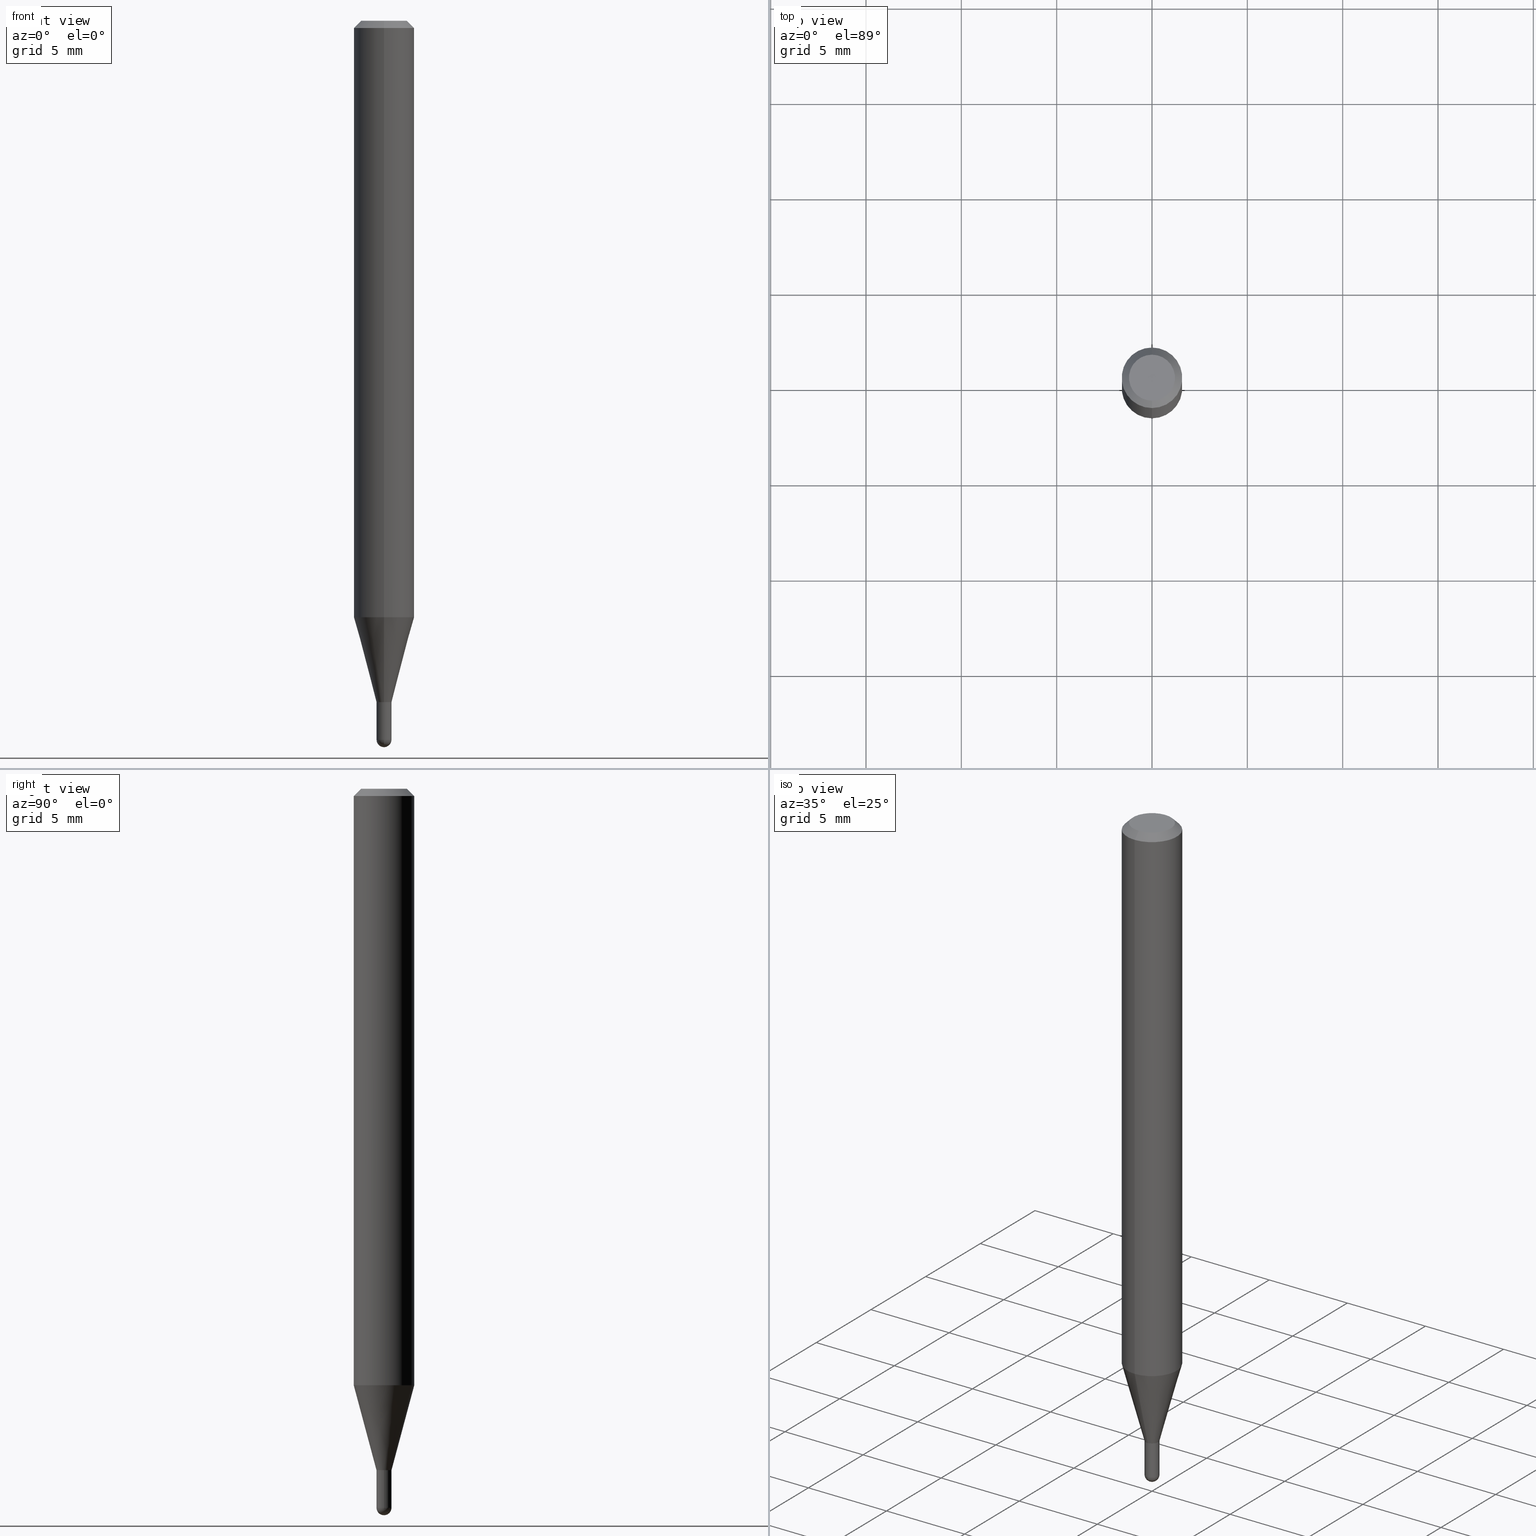
[diagram: canonical four-view strip — front | top / right | iso, engineering-drawing reading convention]
A machine part, canonical four-view strip (front | top / right | iso — engineering-drawing reading convention). The complete STEP part file that produces these views, byte-faithful:
ISO-10303-21;
HEADER;
FILE_DESCRIPTION (( 'STEP AP203' ),
    '1' );
FILE_NAME ('01454.STEP',
    '2024-03-07T21:06:24',
    ( '' ),
    ( '' ),
    'SwSTEP 2.0',
    'SolidWorks 2023',
    '' );
FILE_SCHEMA (( 'CONFIG_CONTROL_DESIGN' ));
ENDSEC;

DATA;
#1 = CARTESIAN_POINT ( 'NONE',  ( 3.011812684095475893E-29, -4.300101975033104784E-15, -1.231593612044268315 ) ) ;
#2 = CYLINDRICAL_SURFACE ( 'NONE', #209, 0.01549999999999999989 ) ;
#3 = DESIGN_CONTEXT ( 'detailed design', #353, 'design' ) ;
#4 = CARTESIAN_POINT ( 'NONE',  ( 3.440761956769566875E-29, -4.912532364331644444E-15, -1.407000000000000250 ) ) ;
#5 = DIRECTION ( 'NONE',  ( 6.982962677686265922E-15, 1.000000000000000000, -3.491494217719718560E-15 ) ) ;
#6 = AXIS2_PLACEMENT_3D ( 'NONE', #387, #466, #76 ) ;
#7 = CIRCLE ( 'NONE', #379, 0.01549999999999992530 ) ;
#8 = LINE ( 'NONE', #475, #362 ) ;
#9 = FACE_OUTER_BOUND ( 'NONE', #68, .T. ) ;
#10 = DIRECTION ( 'NONE',  ( -2.445459812913692826E-29, 3.491494217719718166E-15, 1.000000000000000000 ) ) ;
#11 = VERTEX_POINT ( 'NONE', #306 ) ;
#12 = FACE_OUTER_BOUND ( 'NONE', #56, .T. ) ;
#13 = EDGE_LOOP ( 'NONE', ( #136, #458, #26, #213 ) ) ;
#14 = APPROVAL_DATE_TIME ( #57, #111 ) ;
#15 = APPROVAL_PERSON_ORGANIZATION ( #168, #111, #450 ) ;
#16 = ORIENTED_EDGE ( 'NONE', *, *, #139, .F. ) ;
#17 = PERSON_AND_ORGANIZATION ( #408, #117 ) ;
#18 = EDGE_CURVE ( 'NONE', #382, #19, #219, .T. ) ;
#19 = VERTEX_POINT ( 'NONE', #232 ) ;
#20 = COORDINATED_UNIVERSAL_TIME_OFFSET ( 5, 0, .BEHIND. ) ;
#21 = ADVANCED_BREP_SHAPE_REPRESENTATION ( '01454', ( #170, #490, #372 ), #210 ) ;
#22 = ORIENTED_EDGE ( 'NONE', *, *, #108, .F. ) ;
#23 = PERSON_AND_ORGANIZATION_ROLE ( 'creator' ) ;
#24 = PRODUCT_DEFINITION_SHAPE ( 'NONE', 'NONE',  #189 ) ;
#25 = CIRCLE ( 'NONE', #430, 0.01549999999999992530 ) ;
#26 = ORIENTED_EDGE ( 'NONE', *, *, #404, .T. ) ;
#27 = CIRCLE ( 'NONE', #333, 0.01499999999999999944 ) ;
#28 = ORIENTED_EDGE ( 'NONE', *, *, #316, .T. ) ;
#29 = DIRECTION ( 'NONE',  ( -6.982962677686265922E-15, -1.000000000000000000, 0.000000000000000000 ) ) ;
#30 = ORIENTED_EDGE ( 'NONE', *, *, #326, .T. ) ;
#31 = CARTESIAN_POINT ( 'NONE',  ( 3.440761956769566315E-29, -4.912532364331642866E-15, -1.407000000000000028 ) ) ;
#32 = EDGE_LOOP ( 'NONE', ( #342, #295, #16, #310 ) ) ;
#33 = DIRECTION ( 'NONE',  ( -2.445459812913692826E-29, 3.491494217719718166E-15, 1.000000000000000000 ) ) ;
#34 = CONICAL_SURFACE ( 'NONE', #322, 0.01499999999999999944, 0.7853981633974739252 ) ;
#35 = AXIS2_PLACEMENT_3D ( 'NONE', #505, #343, #351 ) ;
#36 = LOCAL_TIME ( 16, 6, 24.00000000000000000, #371 ) ;
#37 = DIRECTION ( 'NONE',  ( -6.982962677686265922E-15, -1.000000000000000000, 3.491494217719717771E-15 ) ) ;
#38 = CARTESIAN_POINT ( 'NONE',  ( 1.101341240428149734E-16, 0.01549999999999992530, -5.411816037465536463E-17 ) ) ;
#39 = CARTESIAN_POINT ( 'NONE',  ( -0.01549999999999999989, -4.937675021589663102E-15, -1.407000000000000028 ) ) ;
#40 = DIRECTION ( 'NONE',  ( 2.445459812913692826E-29, -3.491494217719718166E-15, -1.000000000000000000 ) ) ;
#41 = LINE ( 'NONE', #246, #509 ) ;
#42 = CIRCLE ( 'NONE', #174, 0.01549999999999999989 ) ;
#43 = LOCAL_TIME ( 16, 6, 24.00000000000000000, #90 ) ;
#44 = CARTESIAN_POINT ( 'NONE',  ( -4.287811248607203282E-16, -0.06250000000000005551, -0.01499999999999979128 ) ) ;
#45 = DIRECTION ( 'NONE',  ( -6.982962677686265922E-15, -1.000000000000000000, 3.491494217719718560E-15 ) ) ;
#46 = CARTESIAN_POINT ( 'NONE',  ( 3.440761956769566315E-29, -4.912532364331642866E-15, -1.407000000000000028 ) ) ;
#47 = LENGTH_MEASURE_WITH_UNIT ( LENGTH_MEASURE( 0.02539999999999999897 ), #436 );
#48 = ADVANCED_FACE ( 'NONE', ( #186 ), #234, .T. ) ;
#49 = VECTOR ( 'NONE', #432, 39.37007874015748143 ) ;
#50 = SECURITY_CLASSIFICATION ( '', '', #217 ) ;
#51 = ORIENTED_EDGE ( 'NONE', *, *, #445, .T. ) ;
#52 = DIRECTION ( 'NONE',  ( 0.000000000000000000, 0.000000000000000000, 1.000000000000000000 ) ) ;
#53 = FACE_OUTER_BOUND ( 'NONE', #142, .T. ) ;
#54 = ORIENTED_EDGE ( 'NONE', *, *, #238, .T. ) ;
#55 = FACE_OUTER_BOUND ( 'NONE', #439, .T. ) ;
#56 = EDGE_LOOP ( 'NONE', ( #30, #109, #464, #370, #221 ) ) ;
#57 = DATE_AND_TIME ( #135, #43 ) ;
#58 = CIRCLE ( 'NONE', #412, 0.01549999999999999989 ) ;
#59 = AXIS2_PLACEMENT_3D ( 'NONE', #263, #268, #313 ) ;
#60 = VERTEX_POINT ( 'NONE', #348 ) ;
#61 = DATE_AND_TIME ( #291, #484 ) ;
#62 = VERTEX_POINT ( 'NONE', #235 ) ;
#63 = ADVANCED_FACE ( 'NONE', ( #456 ), #184, .F. ) ;
#64 = ORIENTED_EDGE ( 'NONE', *, *, #292, .T. ) ;
#65 = PERSON_AND_ORGANIZATION ( #408, #117 ) ;
#66 = EDGE_CURVE ( 'NONE', #426, #97, #58, .T. ) ;
#67 = AXIS2_PLACEMENT_3D ( 'NONE', #1, #130, #169 ) ;
#68 = EDGE_LOOP ( 'NONE', ( #500, #380 ) ) ;
#69 = AXIS2_PLACEMENT_3D ( 'NONE', #201, #162, #512 ) ;
#70 = LINE ( 'NONE', #459, #340 ) ;
#71 = DIMENSIONAL_EXPONENTS ( 1.000000000000000000, 0.000000000000000000, 0.000000000000000000, 0.000000000000000000, 0.000000000000000000, 0.000000000000000000, 0.000000000000000000 ) ;
#72 = EDGE_LOOP ( 'NONE', ( #334, #496 ) ) ;
#73 = FACE_OUTER_BOUND ( 'NONE', #167, .T. ) ;
#74 = VERTEX_POINT ( 'NONE', #105 ) ;
#75 = CARTESIAN_POINT ( 'NONE',  ( 0.000000000000000000, 0.000000000000000000, 0.000000000000000000 ) ) ;
#76 = DIRECTION ( 'NONE',  ( -6.982962677686265922E-15, -1.000000000000000000, 0.000000000000000000 ) ) ;
#77 = DIRECTION ( 'NONE',  ( -4.937700262164674260E-15, -0.7071067811865632269, 0.7071067811865319186 ) ) ;
#78 = AXIS2_PLACEMENT_3D ( 'NONE', #271, #384, #191 ) ;
#79 = AXIS2_PLACEMENT_3D ( 'NONE', #239, #507, #302 ) ;
#80 = DIRECTION ( 'NONE',  ( 1.839019923739648830E-15, 0.2588190451025317862, 0.9659258262890653146 ) ) ;
#81 = ADVANCED_FACE ( 'NONE', ( #194 ), #34, .T. ) ;
#82 = DIRECTION ( 'NONE',  ( -2.445459812913692826E-29, 3.491494217719718166E-15, 1.000000000000000000 ) ) ;
#83 = CONICAL_SURFACE ( 'NONE', #96, 0.01549999999999992530, 0.2617993877991573459 ) ;
#84 = APPLICATION_PROTOCOL_DEFINITION ( 'international standard', 'config_control_design', 1994, #224 ) ;
#85 = FACE_OUTER_BOUND ( 'NONE', #285, .T. ) ;
#86 = ORIENTED_EDGE ( 'NONE', *, *, #511, .F. ) ;
#87 = CARTESIAN_POINT ( 'NONE',  ( 3.440761956769566315E-29, -4.912532364331642866E-15, -1.407000000000000028 ) ) ;
#88 = CC_DESIGN_PERSON_AND_ORGANIZATION_ASSIGNMENT ( #417, #23, ( #266 ) ) ;
#89 = VERTEX_POINT ( 'NONE', #390 ) ;
#90 = COORDINATED_UNIVERSAL_TIME_OFFSET ( 5, 0, .BEHIND. ) ;
#91 = ADVANCED_FACE ( 'NONE', ( #53 ), #132, .F. ) ;
#92 = ORIENTED_EDGE ( 'NONE', *, *, #364, .F. ) ;
#93 = APPROVAL_ROLE ( '' ) ;
#94 = CALENDAR_DATE ( 2024, 7, 3 ) ;
#95 = AXIS2_PLACEMENT_3D ( 'NONE', #127, #405, #5 ) ;
#96 = AXIS2_PLACEMENT_3D ( 'NONE', #4, #82, #276 ) ;
#97 = VERTEX_POINT ( 'NONE', #39 ) ;
#98 = COORDINATED_UNIVERSAL_TIME_OFFSET ( 5, 0, .BEHIND. ) ;
#99 = DIRECTION ( 'NONE',  ( -2.445459812913692826E-29, 3.491494217719718166E-15, 1.000000000000000000 ) ) ;
#100 = COORDINATED_UNIVERSAL_TIME_OFFSET ( 5, 0, .BEHIND. ) ;
#101 = ADVANCED_FACE ( 'NONE', ( #254 ), #2, .T. ) ;
#102 = EDGE_LOOP ( 'NONE', ( #134, #284, #301, #22 ) ) ;
#103 = CYLINDRICAL_SURFACE ( 'NONE', #79, 0.01549999999999992530 ) ;
#104 = CIRCLE ( 'NONE', #508, 0.01549999999999992530 ) ;
#105 = CARTESIAN_POINT ( 'NONE',  ( 1.083577672034493942E-16, 0.01499999999999508671, -1.407000000000000028 ) ) ;
#106 = VECTOR ( 'NONE', #317, 39.37007874015748143 ) ;
#107 = CARTESIAN_POINT ( 'NONE',  ( 3.668189719370541271E-31, -5.237241326579580601E-17, -0.01500000000000000812 ) ) ;
#108 = EDGE_CURVE ( 'NONE', #482, #488, #25, .T. ) ;
#109 = ORIENTED_EDGE ( 'NONE', *, *, #185, .T. ) ;
#110 = DIRECTION ( 'NONE',  ( -6.982962677686265922E-15, -1.000000000000000000, 4.370956789862821150E-15 ) ) ;
#111 = APPROVAL ( #261, 'UNSPECIFIED' ) ;
#112 = ORIENTED_EDGE ( 'NONE', *, *, #299, .T. ) ;
#113 = CARTESIAN_POINT ( 'NONE',  ( 1.101341240428493874E-16, 0.01549999999999501082, -1.407000000000000250 ) ) ;
#114 = CARTESIAN_POINT ( 'NONE',  ( 3.628972935033607816E-29, -5.185002250051328844E-15, -1.484500000000000153 ) ) ;
#115 = ADVANCED_FACE ( 'NONE', ( #55 ), #248, .T. ) ;
#116 = FACE_OUTER_BOUND ( 'NONE', #338, .T. ) ;
#117 = ORGANIZATION ( 'UNSPECIFIED', 'UNSPECIFIED', '' ) ;
#118 = ADVANCED_FACE ( 'NONE', ( #312 ), #208, .T. ) ;
#119 = DIRECTION ( 'NONE',  ( -2.445468806185136877E-29, 3.491481338843145188E-15, 1.000000000000000000 ) ) ;
#120 = DIRECTION ( 'NONE',  ( -6.982962677686265922E-15, -1.000000000000000000, 0.000000000000000000 ) ) ;
#121 = PLANE ( 'NONE',  #131 ) ;
#122 = CIRCLE ( 'NONE', #386, 0.01549999999999999989 ) ;
#123 = CYLINDRICAL_SURFACE ( 'NONE', #265, 0.01549999999999999989 ) ;
#124 = EDGE_CURVE ( 'NONE', #382, #60, #421, .T. ) ;
#125 = CARTESIAN_POINT ( 'NONE',  ( 1.101341240428490053E-16, 0.01549999999999496052, -1.406500000000000083 ) ) ;
#126 = DIRECTION ( 'NONE',  ( -6.982962677686265922E-15, -1.000000000000000000, 0.000000000000000000 ) ) ;
#127 = CARTESIAN_POINT ( 'NONE',  ( 3.316907271900976096E-16, 0.04749999999999999362, -1.702758292642835588E-16 ) ) ;
#128 = EDGE_LOOP ( 'NONE', ( #331, #112, #64, #375, #253 ) ) ;
#129 = ADVANCED_FACE ( 'NONE', ( #12 ), #123, .T. ) ;
#130 = DIRECTION ( 'NONE',  ( -2.445459812913692826E-29, 3.491494217719718166E-15, 1.000000000000000000 ) ) ;
#131 = AXIS2_PLACEMENT_3D ( 'NONE', #441, #252, #45 ) ;
#132 = PLANE ( 'NONE',  #95 ) ;
#133 = CONICAL_SURFACE ( 'NONE', #400, 0.06250000000000000000, 0.7853981633974483900 ) ;
#134 = ORIENTED_EDGE ( 'NONE', *, *, #309, .F. ) ;
#135 = CALENDAR_DATE ( 2024, 7, 3 ) ;
#136 = ORIENTED_EDGE ( 'NONE', *, *, #238, .F. ) ;
#137 = APPROVAL_DATE_TIME ( #339, #182 ) ;
#138 = ORIENTED_EDGE ( 'NONE', *, *, #352, .T. ) ;
#139 = EDGE_CURVE ( 'NONE', #62, #60, #250, .T. ) ;
#140 = AXIS2_PLACEMENT_3D ( 'NONE', #211, #154, #218 ) ;
#141 = CIRCLE ( 'NONE', #69, 0.06250000000000000000 ) ;
#142 = EDGE_LOOP ( 'NONE', ( #138, #416 ) ) ;
#143 = EDGE_LOOP ( 'NONE', ( #498, #86, #216, #449 ) ) ;
#144 = VERTEX_POINT ( 'NONE', #245 ) ;
#145 = DIRECTION ( 'NONE',  ( -6.982962677686265922E-15, -1.000000000000000000, 0.000000000000000000 ) ) ;
#146 = ORIENTED_EDGE ( 'NONE', *, *, #404, .F. ) ;
#147 = CIRCLE ( 'NONE', #35, 0.04749999999999999362 ) ;
#148 = CYLINDRICAL_SURFACE ( 'NONE', #477, 0.06250000000000000000 ) ;
#149 = ADVANCED_FACE ( 'NONE', ( #85 ), #361, .T. ) ;
#150 = DIRECTION ( 'NONE',  ( -6.982962677686265922E-15, -1.000000000000000000, 0.000000000000000000 ) ) ;
#151 = DIRECTION ( 'NONE',  ( 1.000000000000000000, -6.982962677686238312E-15, 0.000000000000000000 ) ) ;
#152 = DIRECTION ( 'NONE',  ( -2.445459812913692826E-29, 3.491494217719718166E-15, 1.000000000000000000 ) ) ;
#153 = ADVANCED_FACE ( 'NONE', ( #206 ), #241, .T. ) ;
#154 = DIRECTION ( 'NONE',  ( -2.445459812913692826E-29, 3.491494217719718166E-15, 1.000000000000000000 ) ) ;
#155 = DIRECTION ( 'NONE',  ( 4.937700262164548042E-15, 0.7071067811865451302, -0.7071067811865499042 ) ) ;
#156 = AXIS2_PLACEMENT_3D ( 'NONE', #325, #479, #126 ) ;
#157 = CARTESIAN_POINT ( 'NONE',  ( 3.840629472727447874E-16, 0.04749999999999999362, -1.747056831868805136E-16 ) ) ;
#158 = AXIS2_PLACEMENT_3D ( 'NONE', #187, #33, #145 ) ;
#159 = DIRECTION ( 'NONE',  ( 2.438088387897960049E-29, -3.491481338843145188E-15, -1.000000000000000000 ) ) ;
#160 = FACE_OUTER_BOUND ( 'NONE', #72, .T. ) ;
#161 = LINE ( 'NONE', #474, #355 ) ;
#162 = DIRECTION ( 'NONE',  ( -2.445459812913692826E-29, 3.491494217719718166E-15, 1.000000000000000000 ) ) ;
#163 = CC_DESIGN_DATE_AND_TIME_ASSIGNMENT ( #489, #222, ( #50 ) ) ;
#164 = AXIS2_PLACEMENT_3D ( 'NONE', #478, #159, #207 ) ;
#165 = CARTESIAN_POINT ( 'NONE',  ( 0.000000000000000000, 0.000000000000000000, 0.000000000000000000 ) ) ;
#166 = EDGE_CURVE ( 'NONE', #267, #447, #104, .T. ) ;
#167 = EDGE_LOOP ( 'NONE', ( #409, #486, #300, #227 ) ) ;
#168 = PERSON_AND_ORGANIZATION ( #408, #117 ) ;
#169 = DIRECTION ( 'NONE',  ( -6.982962677686265922E-15, -1.000000000000000000, 4.370956789862821150E-15 ) ) ;
#170 = MANIFOLD_SOLID_BREP ( 'Body-Move/Copy2[1]', #278 ) ;
#171 = DIRECTION ( 'NONE',  ( -2.445468806185136597E-29, 3.491481338843145583E-15, 1.000000000000000000 ) ) ;
#172 = EDGE_CURVE ( 'NONE', #144, #176, #286, .T. ) ;
#173 = VERTEX_POINT ( 'NONE', #329 ) ;
#174 = AXIS2_PLACEMENT_3D ( 'NONE', #403, #205, #497 ) ;
#175 = CIRCLE ( 'NONE', #192, 0.06250000000000000000 ) ;
#176 = VERTEX_POINT ( 'NONE', #398 ) ;
#177 = PERSON_AND_ORGANIZATION ( #408, #117 ) ;
#178 = ORIENTED_EDGE ( 'NONE', *, *, #368, .T. ) ;
#179 = SHAPE_DEFINITION_REPRESENTATION ( #24, #21 ) ;
#180 = EDGE_LOOP ( 'NONE', ( #492, #413, #423, #504 ) ) ;
#181 = APPROVAL_STATUS ( 'not_yet_approved' ) ;
#182 = APPROVAL ( #414, 'UNSPECIFIED' ) ;
#183 = CIRCLE ( 'NONE', #251, 0.01499999999999999944 ) ;
#184 = CYLINDRICAL_SURFACE ( 'NONE', #297, 0.01549999999999992530 ) ;
#185 = EDGE_CURVE ( 'NONE', #230, #97, #161, .T. ) ;
#186 = FACE_OUTER_BOUND ( 'NONE', #377, .T. ) ;
#187 = CARTESIAN_POINT ( 'NONE',  ( 3.439539226863109124E-29, -4.910786617222784503E-15, -1.406500000000000083 ) ) ;
#188 = ORIENTED_EDGE ( 'NONE', *, *, #172, .F. ) ;
#189 = PRODUCT_DEFINITION ( 'UNKNOWN', '', #266, #3 ) ;
#190 = CARTESIAN_POINT ( 'NONE',  ( 2.166605948957784307E-46, -3.093361871218051006E-32, -8.859707845193895781E-18 ) ) ;
#191 = DIRECTION ( 'NONE',  ( 6.982962677686265922E-15, 1.000000000000000000, -3.483106191921935554E-15 ) ) ;
#192 = AXIS2_PLACEMENT_3D ( 'NONE', #506, #152, #311 ) ;
#193 = CARTESIAN_POINT ( 'NONE',  ( -1.047444401652595841E-16, -0.01500000000000491392, -1.407000000000000028 ) ) ;
#194 = FACE_OUTER_BOUND ( 'NONE', #102, .T. ) ;
#195 = LINE ( 'NONE', #38, #49 ) ;
#196 = ADVANCED_FACE ( 'NONE', ( #9 ), #121, .F. ) ;
#197 = DIRECTION ( 'NONE',  ( -2.445468806185136597E-29, 3.491481338843145583E-15, 1.000000000000000000 ) ) ;
#198 = PRODUCT ( '01454', '01454', '', ( #397 ) ) ;
#199 = DIRECTION ( 'NONE',  ( -2.445459812913693106E-29, 3.491494217719718560E-15, 1.000000000000000000 ) ) ;
#200 = EDGE_CURVE ( 'NONE', #97, #426, #42, .T. ) ;
#201 = CARTESIAN_POINT ( 'NONE',  ( 3.668189719370541271E-31, -5.237241326579580601E-17, -0.01500000000000000812 ) ) ;
#202 = CARTESIAN_POINT ( 'NONE',  ( 3.630298442781836457E-29, -5.183104047512650777E-15, -1.484500000000000597 ) ) ;
#203 = LINE ( 'NONE', #440, #431 ) ;
#204 = CC_DESIGN_DATE_AND_TIME_ASSIGNMENT ( #61, #259, ( #189 ) ) ;
#205 = DIRECTION ( 'NONE',  ( -2.445468806185136597E-29, 3.491481338843145583E-15, 1.000000000000000000 ) ) ;
#206 = FACE_OUTER_BOUND ( 'NONE', #32, .T. ) ;
#207 = DIRECTION ( 'NONE',  ( -1.000000000000000000, 6.982962677686265922E-15, -4.876176775795935793E-29 ) ) ;
#208 = CONICAL_SURFACE ( 'NONE', #225, 0.01499999999999999944, 0.7853981633974739252 ) ;
#209 = AXIS2_PLACEMENT_3D ( 'NONE', #165, #171, #469 ) ;
#210 =( GEOMETRIC_REPRESENTATION_CONTEXT ( 3 ) GLOBAL_UNCERTAINTY_ASSIGNED_CONTEXT ( ( #510 ) ) GLOBAL_UNIT_ASSIGNED_CONTEXT ( ( #395, #279, #481 ) ) REPRESENTATION_CONTEXT ( 'NONE', 'WORKASPACE' ) );
#211 = CARTESIAN_POINT ( 'NONE',  ( 0.000000000000000000, 0.000000000000000000, 0.000000000000000000 ) ) ;
#212 = LOCAL_TIME ( 16, 6, 24.00000000000000000, #20 ) ;
#213 = ORIENTED_EDGE ( 'NONE', *, *, #360, .F. ) ;
#214 = DIRECTION ( 'NONE',  ( 1.000000000000000000, 0.000000000000000000, 0.000000000000000000 ) ) ;
#215 = DIRECTION ( 'NONE',  ( 1.000000000000000000, -7.105427357601001070E-15, 4.926315508542082329E-29 ) ) ;
#216 = ORIENTED_EDGE ( 'NONE', *, *, #451, .T. ) ;
#217 = SECURITY_CLASSIFICATION_LEVEL ( 'unclassified' ) ;
#218 = DIRECTION ( 'NONE',  ( -6.982962677686265922E-15, -1.000000000000000000, 3.491494217719718166E-15 ) ) ;
#219 = CIRCLE ( 'NONE', #6, 0.01550000000000007622 ) ;
#220 = AXIS2_PLACEMENT_3D ( 'NONE', #391, #304, #462 ) ;
#221 = ORIENTED_EDGE ( 'NONE', *, *, #139, .T. ) ;
#222 = DATE_TIME_ROLE ( 'classification_date' ) ;
#223 = LINE ( 'NONE', #113, #494 ) ;
#224 = APPLICATION_CONTEXT ( 'configuration controlled 3d designs of mechanical parts and assemblies' ) ;
#225 = AXIS2_PLACEMENT_3D ( 'NONE', #46, #10, #321 ) ;
#226 = CC_DESIGN_APPROVAL ( #229, ( #189 ) ) ;
#227 = ORIENTED_EDGE ( 'NONE', *, *, #455, .F. ) ;
#228 = CARTESIAN_POINT ( 'NONE',  ( 3.630298442781836457E-29, -5.183104047512650777E-15, -1.484500000000000597 ) ) ;
#229 = APPROVAL ( #181, 'UNSPECIFIED' ) ;
#230 = VERTEX_POINT ( 'NONE', #256 ) ;
#231 = CARTESIAN_POINT ( 'NONE',  ( 3.630298442781836457E-29, -5.183104047512650777E-15, -1.484500000000000597 ) ) ;
#232 = CARTESIAN_POINT ( 'NONE',  ( -1.082359215041010998E-16, -0.01550000000000522141, -1.484500000000000597 ) ) ;
#233 = LINE ( 'NONE', #193, #305 ) ;
#234 = CONICAL_SURFACE ( 'NONE', #78, 0.06250000000000000000, 0.7853981633974483900 ) ;
#235 = CARTESIAN_POINT ( 'NONE',  ( 0.01549999999999999989, -5.156045067136614711E-15, -1.484500000000000597 ) ) ;
#236 = AXIS2_PLACEMENT_3D ( 'NONE', #231, #197, #274 ) ;
#237 = CARTESIAN_POINT ( 'NONE',  ( 1.065814103640494257E-16, 0.01499999999999508671, -1.407000000000000028 ) ) ;
#238 = EDGE_CURVE ( 'NONE', #267, #176, #223, .T. ) ;
#239 = CARTESIAN_POINT ( 'NONE',  ( 0.000000000000000000, 0.000000000000000000, 0.000000000000000000 ) ) ;
#240 = EDGE_CURVE ( 'NONE', #488, #482, #435, .T. ) ;
#241 = SPHERICAL_SURFACE ( 'NONE', #443, 0.01550000000000007622 ) ;
#242 = ADVANCED_FACE ( 'NONE', ( #272 ), #257, .T. ) ;
#243 = DIRECTION ( 'NONE',  ( -1.807323732225377865E-15, -0.2588190451025250138, 0.9659258262890670910 ) ) ;
#244 = LINE ( 'NONE', #44, #106 ) ;
#245 = CARTESIAN_POINT ( 'NONE',  ( -4.364351673553616434E-16, -0.06250000000000431599, -1.231593612044268093 ) ) ;
#246 = CARTESIAN_POINT ( 'NONE',  ( -4.364351673553916201E-16, -0.06250000000000000000, 2.182183886074823853E-16 ) ) ;
#247 = EDGE_CURVE ( 'NONE', #11, #74, #27, .T. ) ;
#248 = CYLINDRICAL_SURFACE ( 'NONE', #140, 0.06250000000000000000 ) ;
#249 = EDGE_LOOP ( 'NONE', ( #290, #369, #410, #51 ) ) ;
#250 = CIRCLE ( 'NONE', #314, 0.01549999999999999989 ) ;
#251 = AXIS2_PLACEMENT_3D ( 'NONE', #87, #283, #358 ) ;
#252 = DIRECTION ( 'NONE',  ( -2.445459812913692266E-29, 3.491494217719718560E-15, 1.000000000000000000 ) ) ;
#253 = ORIENTED_EDGE ( 'NONE', *, *, #200, .F. ) ;
#254 = FACE_OUTER_BOUND ( 'NONE', #128, .T. ) ;
#255 = ORIENTED_EDGE ( 'NONE', *, *, #326, .F. ) ;
#256 = CARTESIAN_POINT ( 'NONE',  ( -0.01549999999999999989, -4.937675021589663102E-15, -1.484500000000000597 ) ) ;
#257 = CONICAL_SURFACE ( 'NONE', #220, 0.01549999999999992530, 0.2617993877991573459 ) ;
#258 = ORIENTED_EDGE ( 'NONE', *, *, #299, .F. ) ;
#259 = DATE_TIME_ROLE ( 'creation_date' ) ;
#260 = DIRECTION ( 'NONE',  ( -2.445459812913692826E-29, 3.491494217719718166E-15, 1.000000000000000000 ) ) ;
#261 = APPROVAL_STATUS ( 'not_yet_approved' ) ;
#262 = ORIENTED_EDGE ( 'NONE', *, *, #360, .T. ) ;
#263 = CARTESIAN_POINT ( 'NONE',  ( 3.630298442781836457E-29, -5.183104047512650777E-15, -1.484500000000000597 ) ) ;
#264 = PRODUCT_RELATED_PRODUCT_CATEGORY ( 'detail', '', ( #198 ) ) ;
#265 = AXIS2_PLACEMENT_3D ( 'NONE', #476, #330, #483 ) ;
#266 = PRODUCT_DEFINITION_FORMATION_WITH_SPECIFIED_SOURCE ( 'ANY', '', #198, .NOT_KNOWN. ) ;
#267 = VERTEX_POINT ( 'NONE', #349 ) ;
#268 = DIRECTION ( 'NONE',  ( -2.445468806185136597E-29, 3.491481338843145583E-15, 1.000000000000000000 ) ) ;
#269 = ORIENTED_EDGE ( 'NONE', *, *, #451, .F. ) ;
#270 = LINE ( 'NONE', #388, #298 ) ;
#271 = CARTESIAN_POINT ( 'NONE',  ( 3.668189719370541271E-31, -5.237241326579580601E-17, -0.01500000000000000812 ) ) ;
#272 = FACE_OUTER_BOUND ( 'NONE', #13, .T. ) ;
#273 = EDGE_CURVE ( 'NONE', #89, #401, #147, .T. ) ;
#274 = DIRECTION ( 'NONE',  ( 1.000000000000000000, -6.982962677686238312E-15, 0.000000000000000000 ) ) ;
#275 = ADVANCED_FACE ( 'NONE', ( #501 ), #133, .T. ) ;
#276 = DIRECTION ( 'NONE',  ( -6.982962677686265922E-15, -1.000000000000000000, 0.000000000000000000 ) ) ;
#277 = CC_DESIGN_PERSON_AND_ORGANIZATION_ASSIGNMENT ( #457, #374, ( #198 ) ) ;
#278 = CLOSED_SHELL ( 'NONE', ( #129, #153, #460, #149, #101 ) ) ;
#279 =( NAMED_UNIT ( * ) PLANE_ANGLE_UNIT ( ) SI_UNIT ( $, .RADIAN. ) );
#280 = AXIS2_PLACEMENT_3D ( 'NONE', #354, #307, #110 ) ;
#281 = CC_DESIGN_SECURITY_CLASSIFICATION ( #50, ( #266 ) ) ;
#282 = DIRECTION ( 'NONE',  ( -2.445468806185136597E-29, 3.491481338843145583E-15, 1.000000000000000000 ) ) ;
#283 = DIRECTION ( 'NONE',  ( -2.445459812913692826E-29, 3.491494217719718166E-15, 1.000000000000000000 ) ) ;
#284 = ORIENTED_EDGE ( 'NONE', *, *, #468, .T. ) ;
#285 = EDGE_LOOP ( 'NONE', ( #428, #328, #258, #255 ) ) ;
#286 = CIRCLE ( 'NONE', #67, 0.06250000000000000000 ) ;
#287 = AXIS2_PLACEMENT_3D ( 'NONE', #190, #345, #465 ) ;
#288 = CC_DESIGN_APPROVAL ( #182, ( #50 ) ) ;
#289 = CARTESIAN_POINT ( 'NONE',  ( 3.439539226863109124E-29, -4.910786617222784503E-15, -1.406500000000000083 ) ) ;
#290 = ORIENTED_EDGE ( 'NONE', *, *, #480, .F. ) ;
#291 = CALENDAR_DATE ( 2024, 7, 3 ) ;
#292 = EDGE_CURVE ( 'NONE', #19, #62, #454, .T. ) ;
#293 = ORIENTED_EDGE ( 'NONE', *, *, #166, .F. ) ;
#294 = APPLICATION_PROTOCOL_DEFINITION ( 'international standard', 'config_control_design', 1994, #353 ) ;
#295 = ORIENTED_EDGE ( 'NONE', *, *, #124, .T. ) ;
#296 = PERSON_AND_ORGANIZATION_ROLE ( 'design_supplier' ) ;
#297 = AXIS2_PLACEMENT_3D ( 'NONE', #341, #99, #37 ) ;
#298 = VECTOR ( 'NONE', #155, 39.37007874015748143 ) ;
#299 = EDGE_CURVE ( 'NONE', #230, #19, #122, .T. ) ;
#300 = ORIENTED_EDGE ( 'NONE', *, *, #316, .F. ) ;
#301 = ORIENTED_EDGE ( 'NONE', *, *, #346, .T. ) ;
#302 = DIRECTION ( 'NONE',  ( -6.982962677686265922E-15, -1.000000000000000000, 3.491494217719717771E-15 ) ) ;
#303 = CARTESIAN_POINT ( 'NONE',  ( 3.440774610302487541E-29, -4.912514243752305891E-15, -1.407000000000000028 ) ) ;
#304 = DIRECTION ( 'NONE',  ( -2.445459812913692826E-29, 3.491494217719718166E-15, 1.000000000000000000 ) ) ;
#305 = VECTOR ( 'NONE', #77, 39.37007874015748143 ) ;
#306 = CARTESIAN_POINT ( 'NONE',  ( -1.047444401652595841E-16, -0.01500000000000491392, -1.407000000000000028 ) ) ;
#307 = DIRECTION ( 'NONE',  ( -2.445459812913692826E-29, 3.491494217719718166E-15, 1.000000000000000000 ) ) ;
#308 = DIRECTION ( 'NONE',  ( -2.445459812913692826E-29, 3.491494217719718166E-15, 1.000000000000000000 ) ) ;
#309 = EDGE_CURVE ( 'NONE', #74, #482, #385, .T. ) ;
#310 = ORIENTED_EDGE ( 'NONE', *, *, #292, .F. ) ;
#311 = DIRECTION ( 'NONE',  ( -6.982962677686265922E-15, -1.000000000000000000, 3.483106191921935554E-15 ) ) ;
#312 = FACE_OUTER_BOUND ( 'NONE', #180, .T. ) ;
#313 = DIRECTION ( 'NONE',  ( 1.000000000000000000, -6.982962677686238312E-15, 0.000000000000000000 ) ) ;
#314 = AXIS2_PLACEMENT_3D ( 'NONE', #202, #282, #437 ) ;
#315 = LOCAL_TIME ( 16, 6, 24.00000000000000000, #100 ) ;
#316 = EDGE_CURVE ( 'NONE', #485, #173, #175, .T. ) ;
#317 = DIRECTION ( 'NONE',  ( -4.851104656540964275E-15, -0.7071067811865500152, -0.7071067811865450192 ) ) ;
#318 = CARTESIAN_POINT ( 'NONE',  ( -1.082359215041025666E-16, -0.01550000000000488834, -1.406500000000000083 ) ) ;
#319 = ADVANCED_FACE ( 'NONE', ( #73 ), #148, .T. ) ;
#320 = CARTESIAN_POINT ( 'NONE',  ( 0.01549999999999999989, -1.082359215041371286E-16, 7.558074002483699918E-31 ) ) ;
#321 = DIRECTION ( 'NONE',  ( -6.982962677686265922E-15, -1.000000000000000000, 0.000000000000000000 ) ) ;
#322 = AXIS2_PLACEMENT_3D ( 'NONE', #350, #260, #442 ) ;
#323 = PLANE ( 'NONE',  #164 ) ;
#324 = CIRCLE ( 'NONE', #280, 0.06250000000000000000 ) ;
#325 = CARTESIAN_POINT ( 'NONE',  ( 3.628972935033607816E-29, -5.185002250051328844E-15, -1.484500000000000153 ) ) ;
#326 = EDGE_CURVE ( 'NONE', #60, #230, #502, .T. ) ;
#327 = DIRECTION ( 'NONE',  ( -2.445459812913693106E-29, 3.491494217719718560E-15, 1.000000000000000000 ) ) ;
#328 = ORIENTED_EDGE ( 'NONE', *, *, #18, .T. ) ;
#329 = CARTESIAN_POINT ( 'NONE',  ( 4.440892098500928887E-16, 0.06249999999999995143, -0.01500000000000022669 ) ) ;
#330 = DIRECTION ( 'NONE',  ( -2.445468806185136597E-29, 3.491481338843145583E-15, 1.000000000000000000 ) ) ;
#331 = ORIENTED_EDGE ( 'NONE', *, *, #185, .F. ) ;
#332 = APPROVAL_DATE_TIME ( #335, #229 ) ;
#333 = AXIS2_PLACEMENT_3D ( 'NONE', #31, #499, #29 ) ;
#334 = ORIENTED_EDGE ( 'NONE', *, *, #66, .T. ) ;
#335 = DATE_AND_TIME ( #376, #315 ) ;
#336 = ORIENTED_EDGE ( 'NONE', *, *, #108, .T. ) ;
#337 = PERSON_AND_ORGANIZATION ( #408, #117 ) ;
#338 = EDGE_LOOP ( 'NONE', ( #293, #178, #336, #269 ) ) ;
#339 = DATE_AND_TIME ( #411, #212 ) ;
#340 = VECTOR ( 'NONE', #420, 39.37007874015748143 ) ;
#341 = CARTESIAN_POINT ( 'NONE',  ( 0.000000000000000000, 0.000000000000000000, 0.000000000000000000 ) ) ;
#342 = ORIENTED_EDGE ( 'NONE', *, *, #18, .F. ) ;
#343 = DIRECTION ( 'NONE',  ( -2.445459812913692826E-29, 3.491494217719718166E-15, 1.000000000000000000 ) ) ;
#344 = ORIENTED_EDGE ( 'NONE', *, *, #480, .T. ) ;
#345 = DIRECTION ( 'NONE',  ( -2.445459812913692826E-29, 3.491494217719718166E-15, 1.000000000000000000 ) ) ;
#346 = EDGE_CURVE ( 'NONE', #11, #488, #233, .T. ) ;
#347 = VECTOR ( 'NONE', #119, 39.37007874015748143 ) ;
#348 = CARTESIAN_POINT ( 'NONE',  ( 1.101341240428520745E-16, 0.01549999999999485296, -1.484500000000000597 ) ) ;
#349 = CARTESIAN_POINT ( 'NONE',  ( 2.771116669464712182E-16, 0.01549999999999501082, -1.407000000000000250 ) ) ;
#350 = CARTESIAN_POINT ( 'NONE',  ( 3.440761956769566315E-29, -4.912532364331642866E-15, -1.407000000000000028 ) ) ;
#351 = DIRECTION ( 'NONE',  ( -6.982962677686266711E-15, -1.000000000000000000, 3.491494217719718560E-15 ) ) ;
#352 = EDGE_CURVE ( 'NONE', #401, #89, #463, .T. ) ;
#353 = APPLICATION_CONTEXT ( 'configuration controlled 3d designs of mechanical parts and assemblies' ) ;
#354 = CARTESIAN_POINT ( 'NONE',  ( 3.011812684095475893E-29, -4.300101975033104784E-15, -1.231593612044268315 ) ) ;
#355 = VECTOR ( 'NONE', #363, 39.37007874015748143 ) ;
#356 = CC_DESIGN_PERSON_AND_ORGANIZATION_ASSIGNMENT ( #337, #487, ( #189 ) ) ;
#357 = CARTESIAN_POINT ( 'NONE',  ( -1.082359215041021845E-16, -0.01550000000000483803, -1.407000000000000250 ) ) ;
#358 = DIRECTION ( 'NONE',  ( -6.982962677686265922E-15, -1.000000000000000000, 0.000000000000000000 ) ) ;
#359 = CARTESIAN_POINT ( 'NONE',  ( 0.01549999999999999989, -5.020750165256442268E-15, -1.407000000000000028 ) ) ;
#360 = EDGE_CURVE ( 'NONE', #176, #144, #324, .T. ) ;
#361 = SPHERICAL_SURFACE ( 'NONE', #156, 0.01550000000000007622 ) ;
#362 = VECTOR ( 'NONE', #243, 39.37007874015748854 ) ;
#363 = DIRECTION ( 'NONE',  ( -2.445468806185136877E-29, 3.491481338843145188E-15, 1.000000000000000000 ) ) ;
#364 = EDGE_CURVE ( 'NONE', #401, #173, #270, .T. ) ;
#365 = EDGE_LOOP ( 'NONE', ( #373, #54, #188, #146 ) ) ;
#366 = CARTESIAN_POINT ( 'NONE',  ( -4.364351673553912750E-16, -0.06250000000000005551, -0.01499999999999979128 ) ) ;
#367 = DIRECTION ( 'NONE',  ( 7.105427357601001070E-15, 1.000000000000000000, 0.000000000000000000 ) ) ;
#368 = EDGE_CURVE ( 'NONE', #267, #482, #195, .T. ) ;
#369 = ORIENTED_EDGE ( 'NONE', *, *, #352, .F. ) ;
#370 = ORIENTED_EDGE ( 'NONE', *, *, #495, .F. ) ;
#371 = COORDINATED_UNIVERSAL_TIME_OFFSET ( 5, 0, .BEHIND. ) ;
#372 = AXIS2_PLACEMENT_3D ( 'NONE', #402, #52, #214 ) ;
#373 = ORIENTED_EDGE ( 'NONE', *, *, #511, .T. ) ;
#374 = PERSON_AND_ORGANIZATION_ROLE ( 'design_owner' ) ;
#375 = ORIENTED_EDGE ( 'NONE', *, *, #495, .T. ) ;
#376 = CALENDAR_DATE ( 2024, 7, 3 ) ;
#377 = EDGE_LOOP ( 'NONE', ( #406, #344, #28, #92 ) ) ;
#378 = CLOSED_SHELL ( 'NONE', ( #389, #118, #48, #319, #415, #242, #115, #275, #91, #196, #81, #63 ) ) ;
#379 = AXIS2_PLACEMENT_3D ( 'NONE', #472, #433, #120 ) ;
#380 = ORIENTED_EDGE ( 'NONE', *, *, #468, .F. ) ;
#381 = DIRECTION ( 'NONE',  ( 5.024295867788190974E-15, 0.7071067811865681119, 0.7071067811865270336 ) ) ;
#382 = VERTEX_POINT ( 'NONE', #470 ) ;
#383 = DIRECTION ( 'NONE',  ( 6.982962677686265922E-15, 1.000000000000000000, -3.483106191921935554E-15 ) ) ;
#384 = DIRECTION ( 'NONE',  ( 2.445459812913692826E-29, -3.491494217719718166E-15, -1.000000000000000000 ) ) ;
#385 = LINE ( 'NONE', #237, #394 ) ;
#386 = AXIS2_PLACEMENT_3D ( 'NONE', #228, #427, #424 ) ;
#387 = CARTESIAN_POINT ( 'NONE',  ( 3.628972935033607816E-29, -5.185002250051328844E-15, -1.484500000000000153 ) ) ;
#388 = CARTESIAN_POINT ( 'NONE',  ( 4.364351673553919652E-16, 0.06249999999999995143, -0.01500000000000022669 ) ) ;
#389 = ADVANCED_FACE ( 'NONE', ( #116 ), #103, .F. ) ;
#390 = CARTESIAN_POINT ( 'NONE',  ( -3.773273898774340269E-16, -0.04749999999999999362, 1.569862674964926943E-16 ) ) ;
#391 = CARTESIAN_POINT ( 'NONE',  ( 3.440761956769566875E-29, -4.912532364331644444E-15, -1.407000000000000250 ) ) ;
#392 = CARTESIAN_POINT ( 'NONE',  ( 3.628972935033607816E-29, -5.185002250051328844E-15, -1.484500000000000153 ) ) ;
#393 = FACE_OUTER_BOUND ( 'NONE', #365, .T. ) ;
#394 = VECTOR ( 'NONE', #381, 39.37007874015748143 ) ;
#395 =( CONVERSION_BASED_UNIT ( 'INCH', #47 ) LENGTH_UNIT ( ) NAMED_UNIT ( #71 ) );
#396 = EDGE_CURVE ( 'NONE', #176, #173, #70, .T. ) ;
#397 = MECHANICAL_CONTEXT ( 'NONE', #224, 'mechanical' ) ;
#398 = CARTESIAN_POINT ( 'NONE',  ( 4.440892098500924943E-16, 0.06249999999999569095, -1.231593612044268538 ) ) ;
#399 = CC_DESIGN_PERSON_AND_ORGANIZATION_ASSIGNMENT ( #17, #296, ( #266 ) ) ;
#400 = AXIS2_PLACEMENT_3D ( 'NONE', #107, #40, #383 ) ;
#401 = VERTEX_POINT ( 'NONE', #157 ) ;
#402 = CARTESIAN_POINT ( 'NONE',  ( 0.000000000000000000, 0.000000000000000000, 0.000000000000000000 ) ) ;
#403 = CARTESIAN_POINT ( 'NONE',  ( 3.440774610302487541E-29, -4.912514243752305891E-15, -1.407000000000000028 ) ) ;
#404 = EDGE_CURVE ( 'NONE', #447, #144, #8, .T. ) ;
#405 = DIRECTION ( 'NONE',  ( 2.445459812913692266E-29, -3.491494217719718560E-15, -1.000000000000000000 ) ) ;
#406 = ORIENTED_EDGE ( 'NONE', *, *, #273, .F. ) ;
#407 = DIRECTION ( 'NONE',  ( -6.982962677686265922E-15, -1.000000000000000000, 0.000000000000000000 ) ) ;
#408 = PERSON ( 'UNSPECIFIED', 'UNSPECIFIED', 'UNSPECIFIED', ('UNSPECIFIED'), ('UNSPECIFIED'), ('UNSPECIFIED') ) ;
#409 = ORIENTED_EDGE ( 'NONE', *, *, #172, .T. ) ;
#410 = ORIENTED_EDGE ( 'NONE', *, *, #364, .T. ) ;
#411 = CALENDAR_DATE ( 2024, 7, 3 ) ;
#412 = AXIS2_PLACEMENT_3D ( 'NONE', #303, #461, #151 ) ;
#413 = ORIENTED_EDGE ( 'NONE', *, *, #309, .T. ) ;
#414 = APPROVAL_STATUS ( 'not_yet_approved' ) ;
#415 = ADVANCED_FACE ( 'NONE', ( #393 ), #83, .T. ) ;
#416 = ORIENTED_EDGE ( 'NONE', *, *, #273, .T. ) ;
#417 = PERSON_AND_ORGANIZATION ( #408, #117 ) ;
#418 = CC_DESIGN_PERSON_AND_ORGANIZATION_ASSIGNMENT ( #65, #493, ( #50 ) ) ;
#419 = ORIENTED_EDGE ( 'NONE', *, *, #396, .F. ) ;
#420 = DIRECTION ( 'NONE',  ( -2.445459812913693106E-29, 3.491494217719718560E-15, 1.000000000000000000 ) ) ;
#421 = CIRCLE ( 'NONE', #491, 0.01550000000000007622 ) ;
#422 = APPROVAL_PERSON_ORGANIZATION ( #177, #182, #93 ) ;
#423 = ORIENTED_EDGE ( 'NONE', *, *, #240, .F. ) ;
#424 = DIRECTION ( 'NONE',  ( 1.000000000000000000, -6.982962677686238312E-15, 0.000000000000000000 ) ) ;
#425 = DIRECTION ( 'NONE',  ( 1.000000000000000000, -6.982962677686265922E-15, 4.883557194083112340E-29 ) ) ;
#426 = VERTEX_POINT ( 'NONE', #359 ) ;
#427 = DIRECTION ( 'NONE',  ( -2.445468806185136597E-29, 3.491481338843145583E-15, 1.000000000000000000 ) ) ;
#428 = ORIENTED_EDGE ( 'NONE', *, *, #124, .F. ) ;
#429 = DIRECTION ( 'NONE',  ( -6.982962677686265922E-15, -1.000000000000000000, 3.491494217719718166E-15 ) ) ;
#430 = AXIS2_PLACEMENT_3D ( 'NONE', #289, #446, #407 ) ;
#431 = VECTOR ( 'NONE', #327, 39.37007874015748143 ) ;
#432 = DIRECTION ( 'NONE',  ( -2.445459812913693106E-29, 3.491494217719718560E-15, 1.000000000000000000 ) ) ;
#433 = DIRECTION ( 'NONE',  ( -2.445459812913692826E-29, 3.491494217719718166E-15, 1.000000000000000000 ) ) ;
#434 = DIRECTION ( 'NONE',  ( -6.982962677686265922E-15, -1.000000000000000000, 0.000000000000000000 ) ) ;
#435 = CIRCLE ( 'NONE', #158, 0.01549999999999992530 ) ;
#436 =( LENGTH_UNIT ( ) NAMED_UNIT ( * ) SI_UNIT ( $, .METRE. ) );
#437 = DIRECTION ( 'NONE',  ( 1.000000000000000000, -6.982962677686238312E-15, 0.000000000000000000 ) ) ;
#438 = CARTESIAN_POINT ( 'NONE',  ( 3.440761956769566875E-29, -4.912532364331644444E-15, -1.407000000000000250 ) ) ;
#439 = EDGE_LOOP ( 'NONE', ( #419, #262, #444, #452 ) ) ;
#440 = CARTESIAN_POINT ( 'NONE',  ( -1.082359215041365986E-16, -0.01549999999999992530, 5.411816037465536463E-17 ) ) ;
#441 = CARTESIAN_POINT ( 'NONE',  ( 3.440761956769566315E-29, -4.912532364331642866E-15, -1.407000000000000028 ) ) ;
#442 = DIRECTION ( 'NONE',  ( -6.982962677686265922E-15, -1.000000000000000000, 0.000000000000000000 ) ) ;
#443 = AXIS2_PLACEMENT_3D ( 'NONE', #392, #425, #150 ) ;
#444 = ORIENTED_EDGE ( 'NONE', *, *, #455, .T. ) ;
#445 = EDGE_CURVE ( 'NONE', #173, #485, #141, .T. ) ;
#446 = DIRECTION ( 'NONE',  ( -2.445459812913692826E-29, 3.491494217719718166E-15, 1.000000000000000000 ) ) ;
#447 = VERTEX_POINT ( 'NONE', #357 ) ;
#448 = APPROVAL_ROLE ( '' ) ;
#449 = ORIENTED_EDGE ( 'NONE', *, *, #240, .T. ) ;
#450 = APPROVAL_ROLE ( '' ) ;
#451 = EDGE_CURVE ( 'NONE', #447, #488, #203, .T. ) ;
#452 = ORIENTED_EDGE ( 'NONE', *, *, #445, .F. ) ;
#453 = PERSON_AND_ORGANIZATION ( #408, #117 ) ;
#454 = CIRCLE ( 'NONE', #59, 0.01549999999999999989 ) ;
#455 = EDGE_CURVE ( 'NONE', #144, #485, #41, .T. ) ;
#456 = FACE_OUTER_BOUND ( 'NONE', #143, .T. ) ;
#457 = PERSON_AND_ORGANIZATION ( #408, #117 ) ;
#458 = ORIENTED_EDGE ( 'NONE', *, *, #166, .T. ) ;
#459 = CARTESIAN_POINT ( 'NONE',  ( 4.440892098500625669E-16, 0.06250000000000000000, -2.182183886074823853E-16 ) ) ;
#460 = ADVANCED_FACE ( 'NONE', ( #160 ), #323, .F. ) ;
#461 = DIRECTION ( 'NONE',  ( -2.445468806185136597E-29, 3.491481338843145583E-15, 1.000000000000000000 ) ) ;
#462 = DIRECTION ( 'NONE',  ( -6.982962677686265922E-15, -1.000000000000000000, 0.000000000000000000 ) ) ;
#463 = CIRCLE ( 'NONE', #287, 0.04749999999999999362 ) ;
#464 = ORIENTED_EDGE ( 'NONE', *, *, #66, .F. ) ;
#465 = DIRECTION ( 'NONE',  ( -6.982962677686266711E-15, -1.000000000000000000, 3.491494217719718560E-15 ) ) ;
#466 = DIRECTION ( 'NONE',  ( -1.000000000000000000, 6.982962677686265922E-15, -4.883557194083112340E-29 ) ) ;
#467 = DIRECTION ( 'NONE',  ( -2.445459812913692826E-29, 3.491494217719718166E-15, 1.000000000000000000 ) ) ;
#468 = EDGE_CURVE ( 'NONE', #74, #11, #183, .T. ) ;
#469 = DIRECTION ( 'NONE',  ( 1.000000000000000000, -6.982962677686266711E-15, 4.876176775795935232E-29 ) ) ;
#470 = CARTESIAN_POINT ( 'NONE',  ( 3.666214947655363055E-29, -5.240069312072737643E-15, -1.500000000000000444 ) ) ;
#471 = APPROVAL_PERSON_ORGANIZATION ( #453, #229, #448 ) ;
#472 = CARTESIAN_POINT ( 'NONE',  ( 3.440761956769566875E-29, -4.912532364331644444E-15, -1.407000000000000250 ) ) ;
#473 = LINE ( 'NONE', #320, #347 ) ;
#474 = CARTESIAN_POINT ( 'NONE',  ( -0.01549999999999999989, 1.101341240428155280E-16, -7.624349389895103058E-31 ) ) ;
#475 = CARTESIAN_POINT ( 'NONE',  ( -1.082359215041021845E-16, -0.01550000000000483803, -1.407000000000000250 ) ) ;
#476 = CARTESIAN_POINT ( 'NONE',  ( 0.000000000000000000, 0.000000000000000000, 0.000000000000000000 ) ) ;
#477 = AXIS2_PLACEMENT_3D ( 'NONE', #75, #467, #429 ) ;
#478 = CARTESIAN_POINT ( 'NONE',  ( 1.082359215041715180E-16, 0.01549999999999508715, -1.407000000000000028 ) ) ;
#479 = DIRECTION ( 'NONE',  ( 1.000000000000000000, -6.982962677686265922E-15, 4.883557194083112340E-29 ) ) ;
#480 = EDGE_CURVE ( 'NONE', #89, #485, #244, .T. ) ;
#481 =( NAMED_UNIT ( * ) SI_UNIT ( $, .STERADIAN. ) SOLID_ANGLE_UNIT ( ) );
#482 = VERTEX_POINT ( 'NONE', #125 ) ;
#483 = DIRECTION ( 'NONE',  ( 1.000000000000000000, -6.982962677686266711E-15, 4.876176775795935232E-29 ) ) ;
#484 = LOCAL_TIME ( 16, 6, 24.00000000000000000, #98 ) ;
#485 = VERTEX_POINT ( 'NONE', #366 ) ;
#486 = ORIENTED_EDGE ( 'NONE', *, *, #396, .T. ) ;
#487 = PERSON_AND_ORGANIZATION_ROLE ( 'creator' ) ;
#488 = VERTEX_POINT ( 'NONE', #318 ) ;
#489 = DATE_AND_TIME ( #94, #36 ) ;
#490 = MANIFOLD_SOLID_BREP ( 'Body-Move/Copy2[2]', #378 ) ;
#491 = AXIS2_PLACEMENT_3D ( 'NONE', #114, #215, #367 ) ;
#492 = ORIENTED_EDGE ( 'NONE', *, *, #247, .T. ) ;
#493 = PERSON_AND_ORGANIZATION_ROLE ( 'classification_officer' ) ;
#494 = VECTOR ( 'NONE', #80, 39.37007874015748143 ) ;
#495 = EDGE_CURVE ( 'NONE', #62, #426, #473, .T. ) ;
#496 = ORIENTED_EDGE ( 'NONE', *, *, #200, .T. ) ;
#497 = DIRECTION ( 'NONE',  ( 1.000000000000000000, -6.982962677686238312E-15, 0.000000000000000000 ) ) ;
#498 = ORIENTED_EDGE ( 'NONE', *, *, #368, .F. ) ;
#499 = DIRECTION ( 'NONE',  ( -2.445459812913692826E-29, 3.491494217719718166E-15, 1.000000000000000000 ) ) ;
#500 = ORIENTED_EDGE ( 'NONE', *, *, #247, .F. ) ;
#501 = FACE_OUTER_BOUND ( 'NONE', #249, .T. ) ;
#502 = CIRCLE ( 'NONE', #236, 0.01549999999999999989 ) ;
#503 = CC_DESIGN_APPROVAL ( #111, ( #266 ) ) ;
#504 = ORIENTED_EDGE ( 'NONE', *, *, #346, .F. ) ;
#505 = CARTESIAN_POINT ( 'NONE',  ( 2.166605948957784307E-46, -3.093361871218051006E-32, -8.859707845193895781E-18 ) ) ;
#506 = CARTESIAN_POINT ( 'NONE',  ( 3.668189719370541271E-31, -5.237241326579580601E-17, -0.01500000000000000812 ) ) ;
#507 = DIRECTION ( 'NONE',  ( -2.445459812913692826E-29, 3.491494217719718166E-15, 1.000000000000000000 ) ) ;
#508 = AXIS2_PLACEMENT_3D ( 'NONE', #438, #308, #434 ) ;
#509 = VECTOR ( 'NONE', #199, 39.37007874015748143 ) ;
#510 = UNCERTAINTY_MEASURE_WITH_UNIT (LENGTH_MEASURE( 1.000000000000000082E-05 ), #395, 'distance_accuracy_value', 'NONE');
#511 = EDGE_CURVE ( 'NONE', #447, #267, #7, .T. ) ;
#512 = DIRECTION ( 'NONE',  ( -6.982962677686265922E-15, -1.000000000000000000, 3.483106191921935554E-15 ) ) ;
ENDSEC;
END-ISO-10303-21;
